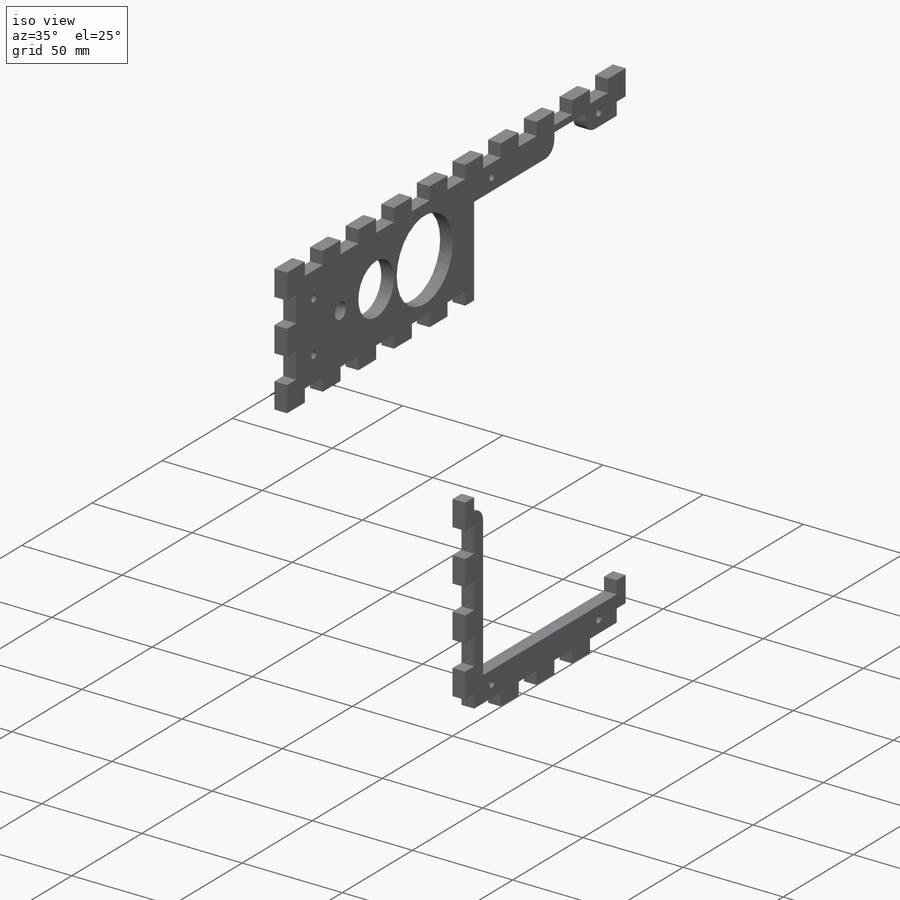
[diagram: iso view]
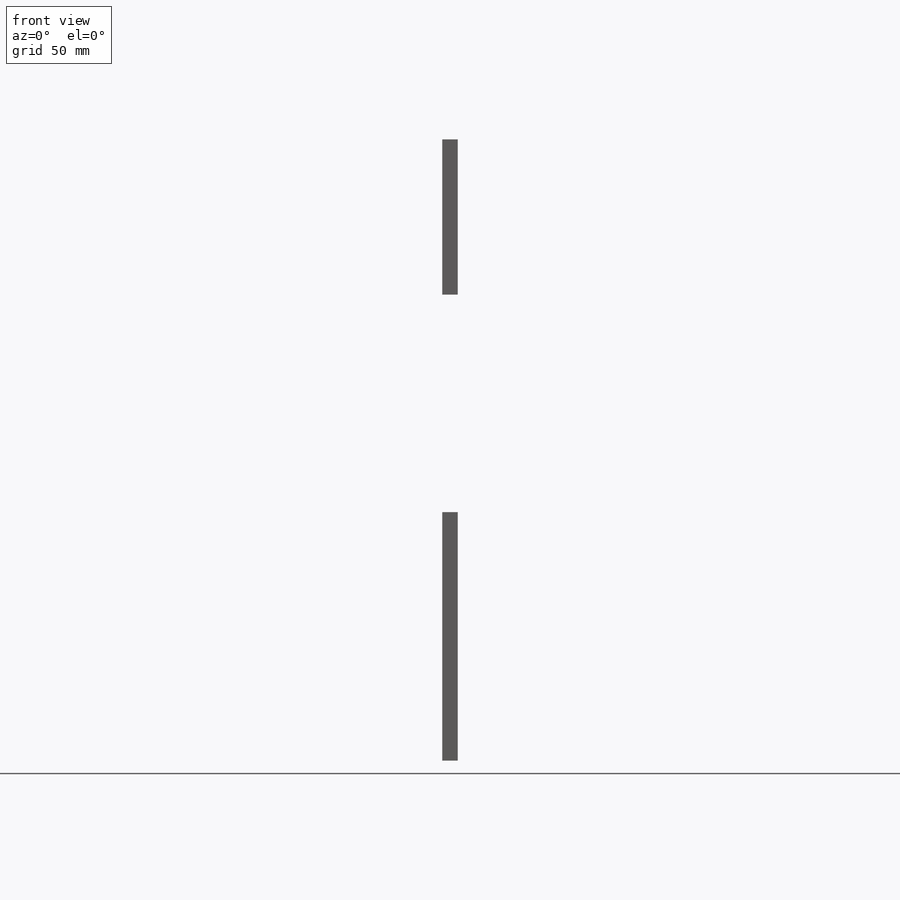
[diagram: front view]
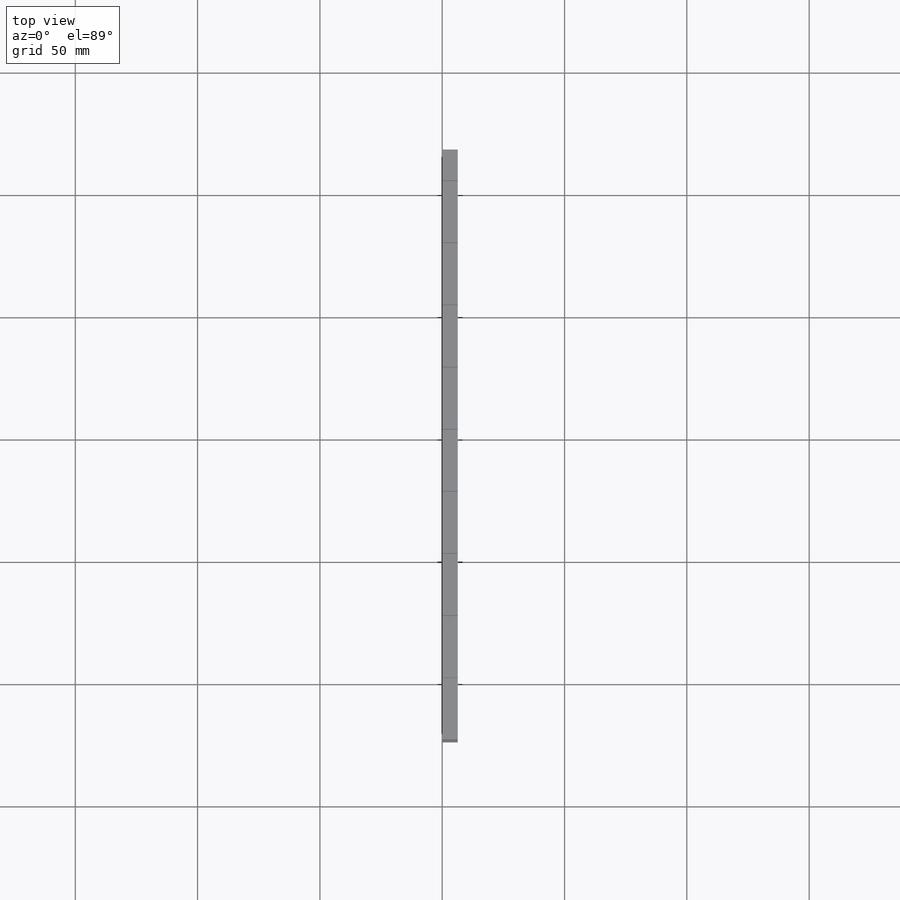
[diagram: top view]
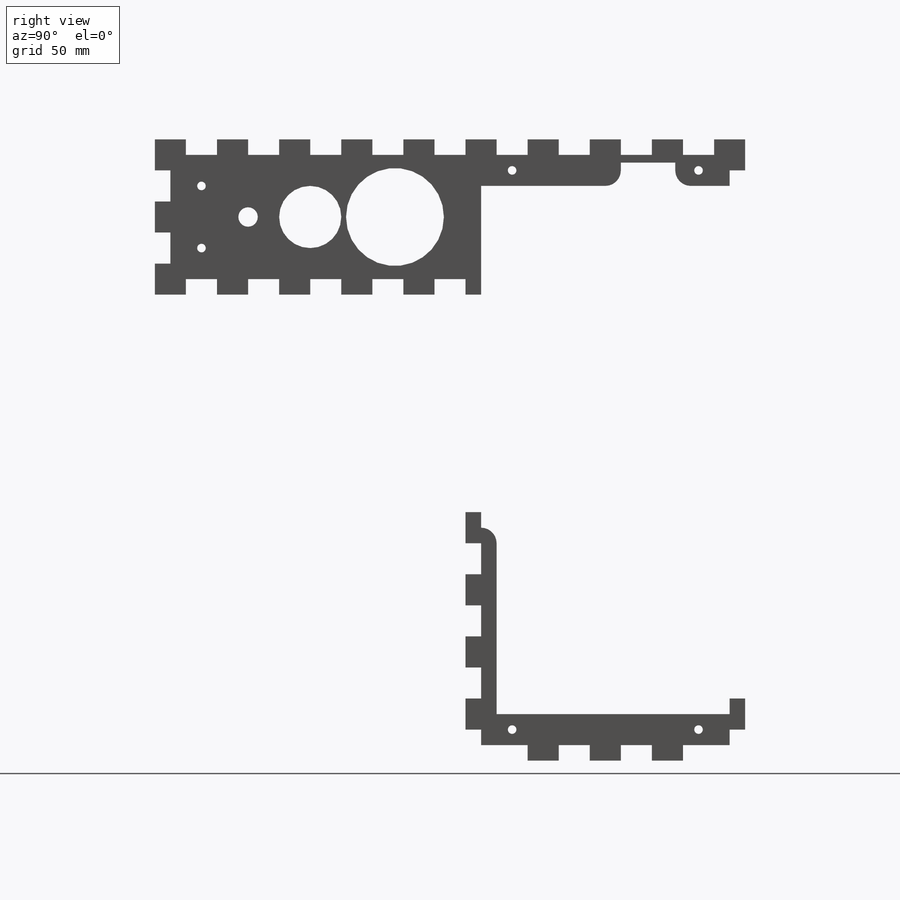
[diagram: right view]
SOLIDWORKS PART (.sldprt)
format: sldprt  version: not decoded by parser v0  size: 733,696 bytes
history: native  units: mm
features: sketch x15, cut_extrude x14, pattern_linear x4, fillet x2, material x1, extrude x1 (+13 scaffold rows collapsed)
feature tree (50):
  scaffold x13  (default folders/planes/origin — collapsed)
  material  "Pine"
  sketch  "Sketch1"  dims[D11=3.5mm D1=114.3mm D2=254.0mm D3=241.3mm D4=63.5mm D5=25.4mm D6=76.2mm D7=196.85mm D8=127.0mm D9=19.05mm D10=19.05mm D12=6.35mm D13=6.35mm]
  extrude  "Boss-Extrude1"  Depth=6.35mm
  sketch  "Sketch2"  dims[D1=12.7mm D2=6.35mm D3=12.7mm]
  cut_extrude  "Cut-Extrude1"  [1 undecoded]
  pattern_linear  "LPattern1"  Count1=10 Count2=1 Spacing1=25.4mm Spacing2=2.54mm
  sketch  "Sketch3"  dims[D1=12.7mm]
  cut_extrude  "Cut-Extrude2"  [1 undecoded]
  pattern_linear  "LPattern2"  Count1=10 Count2=1 Spacing1=25.4mm Spacing2=2.54mm
  sketch  "Sketch4"  dims[D1=12.7mm D2=12.7mm D3=6.35mm]
  cut_extrude  "Cut-Extrude3"  [1 undecoded]
  sketch  "Sketch5"  dims[D1=12.7mm]
  cut_extrude  "Cut-Extrude4"  [1 undecoded]
  pattern_linear  "LPattern3"  Count1=5 Count2=1 Spacing1=25.4mm Spacing2=2.54mm
  sketch  "Sketch6"
  cut_extrude  "Cut-Extrude5"  [1 undecoded]
  pattern_linear  "LPattern4"  Count1=8 Count2=1 Spacing1=25.4mm Spacing2=2.54mm
  sketch  "Sketch7"  dims[D1=6.35mm D2=12.7mm D3=12.7mm D4=12.7mm]
  cut_extrude  "Cut-Extrude6"  [1 undecoded]
  sketch  "Sketch8"
  cut_extrude  "Cut-Extrude7"  [1 undecoded]
  sketch  "Sketch9"  dims[c1.D4=3.5mm c1.D1=6.35mm c1.D2=6.35mm c1.D3=12.7mm c2.D4=6.35mm c2.D3=12.7mm]
  cut_extrude  "Cut-Extrude8"  [1 undecoded]
  sketch  "Sketch10"  dims[c1.D1=~23.20823mm c1.D2=~23.20823mm c1.D3=7.9375mm c2.D1=31.75mm c2.D2=38.1mm]
  cut_extrude  "Cut-Extrude9"  [1 undecoded]
  sketch  "Sketch12"  dims[D2=25.4mm D1=25.4mm]
  cut_extrude  "Cut-Extrude11"  [1 undecoded]
  sketch  "Sketch13"  dims[D2=40.0mm D1=28.85mm]
  cut_extrude  "Cut-Extrude12"  [1 undecoded]
  sketch  "Sketch14"
  cut_extrude  "Cut-Extrude14"  [1 undecoded]
  sketch  "Sketch15"
  cut_extrude  "Cut-Extrude15"  [1 undecoded]
  fillet  "Fillet1"  Radius=6.35mm
  sketch  "Sketch16"
  cut_extrude  "Cut-Extrude16"  [1 undecoded]
  fillet  "Fillet2"  Radius=6.35mm
decode coverage: 17 of 36 modeling features carry decoded parameters
note: ~ marks probable driven/reference dimensions
note: 14 parameter values undecoded
summary: no parameter record found for 14 features
note: suppression state not decoded; provenance and decode notes live in map.json
